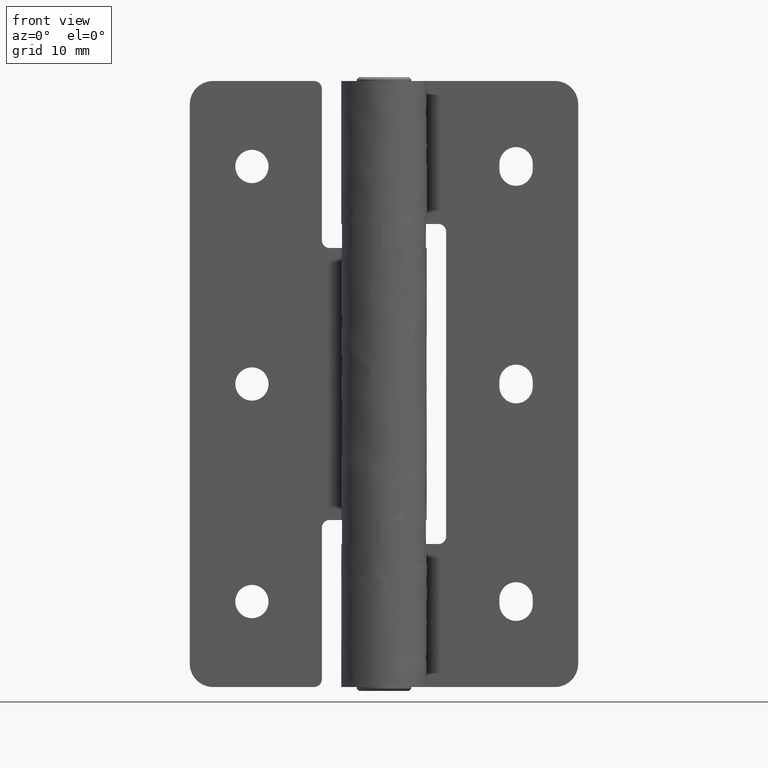
[diagram: clean part render]
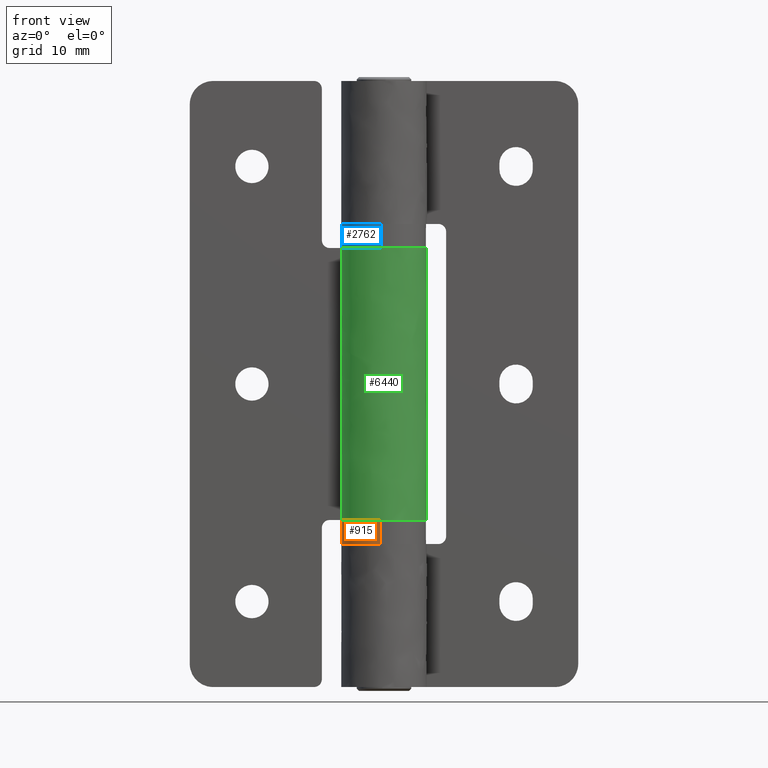
[diagram: same view with three faces highlighted in distinct colors, each labeled with its STEP entity id]
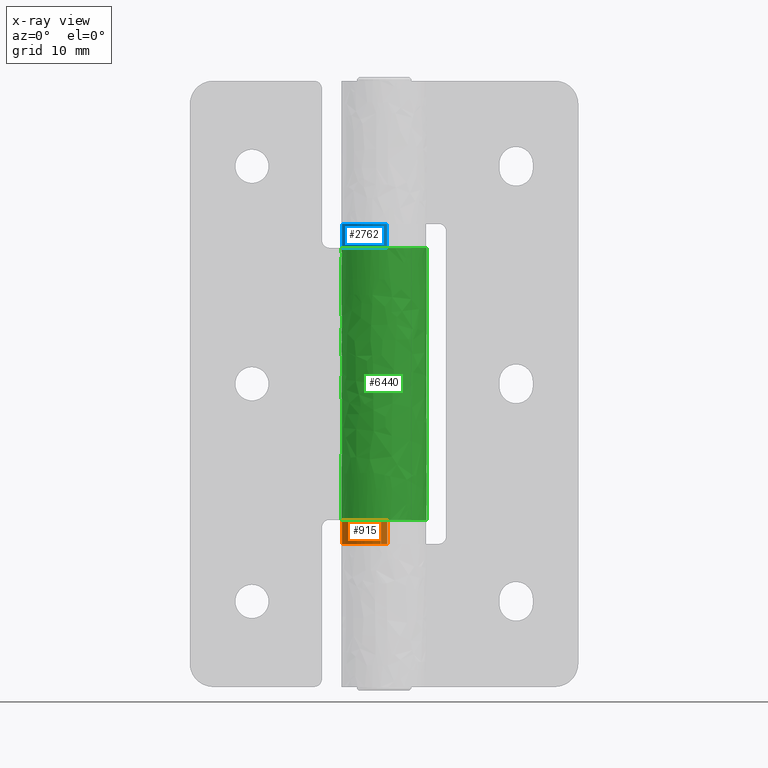
[diagram: x-ray of the same camera — body ghosted, the three highlighted faces saturated]
A machine part, front view with three faces highlighted in distinct colors.
The next image is the same camera in x-ray (body ghosted, the three faces saturated) — at least one of them is partly hidden behind the body in this view.
Their STEP definitions:

[orange] entity #915 — the highlighted face is a freeform B-spline surface patch.
#707=CARTESIAN_POINT('',(-0.423683496099843,-5.383353257507194,21.500000000000000));
#708=VERTEX_POINT('',#707);
#709=CARTESIAN_POINT('',(0.423689557716620,5.383352780430816,21.500000000000000));
#710=VERTEX_POINT('',#709);
#728=CARTESIAN_POINT('',(-0.423679117063694,-5.383353602148397,18.399999999999999));
#729=VERTEX_POINT('',#728);
#730=CARTESIAN_POINT('',(-0.423683496099843,-5.383353257507194,21.500000000000000));
#731=CARTESIAN_POINT('',(-0.423679117063694,-5.383353602148397,18.399999999999999));
#732=QUASI_UNIFORM_CURVE('',1,(#730,#731),.UNSPECIFIED.,.F.,.U.);
#733=EDGE_CURVE('',#708,#729,#732,.T.);
#752=CARTESIAN_POINT('',(0.423679117063694,5.383353602148397,18.399999999999999));
#753=VERTEX_POINT('',#752);
#767=CARTESIAN_POINT('',(0.423689557716620,5.383352780430816,21.500000000000000));
#768=CARTESIAN_POINT('',(0.423679117063694,5.383353602148397,18.399999999999999));
#769=QUASI_UNIFORM_CURVE('',1,(#767,#768),.UNSPECIFIED.,.F.,.U.);
#770=EDGE_CURVE('',#710,#753,#769,.T.);
#775=CARTESIAN_POINT('',(-0.423679116930363,-5.383353602158890,34.390000000000001));
#776=CARTESIAN_POINT('',(-5.807032719089252,-4.959674485228527,34.389999999999993));
#777=CARTESIAN_POINT('',(-5.383353602158890,0.423679116930363,34.390000000000001));
#778=CARTESIAN_POINT('',(-4.959674485228527,5.807032719089252,34.389999999999993));
#779=CARTESIAN_POINT('',(0.423679116930363,5.383353602158890,34.390000000000001));
#780=CARTESIAN_POINT('',(-0.423679116930363,-5.383353602158890,18.000249999999991));
#781=CARTESIAN_POINT('',(-5.807032719089252,-4.959674485228527,18.000249999999994));
#782=CARTESIAN_POINT('',(-5.383353602158890,0.423679116930363,18.000249999999991));
#783=CARTESIAN_POINT('',(-4.959674485228527,5.807032719089252,18.000249999999994));
#784=CARTESIAN_POINT('',(0.423679116930363,5.383353602158890,18.000249999999991));
#792=(BOUNDED_SURFACE()B_SPLINE_SURFACE(2,1,((#775,#780),(#776,#781),(#777,#782),(#778,#783),(#779,#784)),.UNSPECIFIED.,.F.,.F.,.U.)B_SPLINE_SURFACE_WITH_KNOTS((3,2,3),(2,2),(0.0,8.947012947258848,17.894025894517700),(0.0,16.389750000000010),.UNSPECIFIED.)GEOMETRIC_REPRESENTATION_ITEM()RATIONAL_B_SPLINE_SURFACE(((1.0,1.0),(0.707106781186548,0.707106781186548),(1.0,1.0),(0.707106781186548,0.707106781186548),(1.0,1.0)))REPRESENTATION_ITEM('')SURFACE());
#793=CARTESIAN_POINT('',(-4.112177038990420,3.500000000000000,21.500000000000000));
#794=VERTEX_POINT('',#793);
#795=CARTESIAN_POINT('',(0.423689557716620,5.383352780430816,21.500000000000000));
#796=CARTESIAN_POINT('',(-2.325066532310094,5.599689940483795,21.500000000000004));
#797=CARTESIAN_POINT('',(-4.112177038990420,3.500000000000000,21.500000000000000));
#805=(BOUNDED_CURVE()B_SPLINE_CURVE(2,(#795,#796,#797),.UNSPECIFIED.,.F.,.U.)B_SPLINE_CURVE_WITH_KNOTS((3,3),(0.837738523270226,1.0),.UNSPECIFIED.)CURVE()GEOMETRIC_REPRESENTATION_ITEM()RATIONAL_B_SPLINE_CURVE((0.886768634948933,0.838680660400556,1.0))REPRESENTATION_ITEM(''));
#806=EDGE_CURVE('',#710,#794,#805,.T.);
#807=ORIENTED_EDGE('',*,*,#806,.F.);
#808=ORIENTED_EDGE('',*,*,#770,.T.);
#809=CARTESIAN_POINT('',(-5.400000000000000,0.0,18.399999999999999));
#810=VERTEX_POINT('',#809);
#811=CARTESIAN_POINT('',(0.423679117063695,5.383353602148397,18.399999999999999));
#812=CARTESIAN_POINT('',(0.212166577908391,5.400000000000000,18.399999999999999));
#813=CARTESIAN_POINT('',(0.0,5.400000000000000,18.399999999999999));
#814=CARTESIAN_POINT('',(-5.400000000000000,5.400000000000000,18.399999999999991));
#815=CARTESIAN_POINT('',(-5.400000000000000,0.0,18.399999999999999));
#823=(BOUNDED_CURVE()B_SPLINE_CURVE(2,(#811,#812,#813,#814,#815),.UNSPECIFIED.,.F.,.U.)B_SPLINE_CURVE_WITH_KNOTS((3,2,3),(0.736331300628521,0.750000000000000,1.0),.UNSPECIFIED.)CURVE()GEOMETRIC_REPRESENTATION_ITEM()RATIONAL_B_SPLINE_CURVE((0.969723356162955,0.983986122576377,1.0,0.707106781186548,1.0))REPRESENTATION_ITEM(''));
#824=EDGE_CURVE('',#753,#810,#823,.T.);
#825=ORIENTED_EDGE('',*,*,#824,.T.);
#826=CARTESIAN_POINT('',(-5.400000000000000,0.0,18.399999999999999));
#827=CARTESIAN_POINT('',(-5.400000000000000,-4.991708654830305,18.399999999999991));
#828=CARTESIAN_POINT('',(-0.423679117063694,-5.383353602148398,18.399999999999999));
#836=(BOUNDED_CURVE()B_SPLINE_CURVE(2,(#826,#827,#828),.UNSPECIFIED.,.F.,.U.)B_SPLINE_CURVE_WITH_KNOTS((3,3),(0.0,0.236331300628521),.UNSPECIFIED.)CURVE()GEOMETRIC_REPRESENTATION_ITEM()RATIONAL_B_SPLINE_CURVE((1.0,0.723120658610171,0.969723356162955))REPRESENTATION_ITEM(''));
#837=EDGE_CURVE('',#810,#729,#836,.T.);
#838=ORIENTED_EDGE('',*,*,#837,.T.);
#839=ORIENTED_EDGE('',*,*,#733,.F.);
#840=CARTESIAN_POINT('',(-5.306599664568640,1.0,21.500000000000000));
#841=VERTEX_POINT('',#840);
#842=CARTESIAN_POINT('',(-5.306599664568640,1.0,21.500000000000000));
#843=CARTESIAN_POINT('',(-6.184617987820396,-3.659291739652463,21.500000000000000));
#844=CARTESIAN_POINT('',(-1.678053896966585,-5.132653808592466,21.500000000000000));
#845=CARTESIAN_POINT('',(-1.065820662914357,-5.332815440871864,21.500000000000007));
#846=CARTESIAN_POINT('',(-0.423683496099843,-5.383353257507194,21.499999999999996));
#854=(BOUNDED_CURVE()B_SPLINE_CURVE(2,(#842,#843,#844,#845,#846),.UNSPECIFIED.,.F.,.U.)B_SPLINE_CURVE_WITH_KNOTS((3,2,3),(0.0,0.250000000000000,0.293253497368617),.UNSPECIFIED.)CURVE()GEOMETRIC_REPRESENTATION_ITEM()RATIONAL_B_SPLINE_CURVE((1.0,0.751451572408494,1.0,0.956997644964788,0.928875307932455))REPRESENTATION_ITEM(''));
#855=EDGE_CURVE('',#841,#708,#854,.T.);
#856=ORIENTED_EDGE('',*,*,#855,.F.);
#857=CARTESIAN_POINT('',(-5.306599664568640,1.0,33.299999999999997));
#858=VERTEX_POINT('',#857);
#859=CARTESIAN_POINT('',(-5.306599664568640,1.0,33.299999999999997));
#860=CARTESIAN_POINT('',(-5.306599664568640,1.0,21.500000000000000));
#861=QUASI_UNIFORM_CURVE('',1,(#859,#860),.UNSPECIFIED.,.F.,.U.);
#862=EDGE_CURVE('',#858,#841,#861,.T.);
#863=ORIENTED_EDGE('',*,*,#862,.F.);
#864=CARTESIAN_POINT('',(-5.125426811495800,1.700000000000000,34.0));
#865=VERTEX_POINT('',#864);
#866=CARTESIAN_POINT('',(-5.306599664568640,1.0,33.299999999999997));
#867=CARTESIAN_POINT('',(-5.306599664568642,1.0,33.347066023685848));
#868=CARTESIAN_POINT('',(-5.305720342574672,1.004698626903804,33.393316710272927));
#869=CARTESIAN_POINT('',(-5.303083085930055,1.018494823183123,33.461519955216687));
#870=CARTESIAN_POINT('',(-5.301981564679265,1.024226920038496,33.484057368566390));
#871=CARTESIAN_POINT('',(-5.299300233300812,1.038010757780617,33.528728252977309));
#872=CARTESIAN_POINT('',(-5.297717165873770,1.046077350891849,33.550849638785479));
#873=CARTESIAN_POINT('',(-5.292313081800717,1.073201853692540,33.615096132897428));
#874=CARTESIAN_POINT('',(-5.287818435469791,1.095301841518994,33.655647483385181));
#875=CARTESIAN_POINT('',(-5.279518922058696,1.134397388156671,33.713073763755560));
#876=CARTESIAN_POINT('',(-5.276470693842387,1.148516109934625,33.731743634293373));
#877=CARTESIAN_POINT('',(-5.269904241352955,1.178279052146400,33.767273259801172));
#878=CARTESIAN_POINT('',(-5.266387789326326,1.193918664957371,33.784155439817340));
#879=CARTESIAN_POINT('',(-5.255094047857669,1.243026569533404,33.832235393580142));
#880=CARTESIAN_POINT('',(-5.246574934661934,1.278683158393307,33.860901833335546));
#881=CARTESIAN_POINT('',(-5.227188018417183,1.355759781339384,33.911242521031639));
#882=CARTESIAN_POINT('',(-5.216625481707926,1.395955244997562,33.932124034837663));
#883=CARTESIAN_POINT('',(-5.199344759386407,1.458520547901625,33.957414387072809));
#884=CARTESIAN_POINT('',(-5.193344263858087,1.479757354148953,33.964831870739083));
#885=CARTESIAN_POINT('',(-5.180830086682822,1.522992476352942,33.977625690166938));
#886=CARTESIAN_POINT('',(-5.174307453695108,1.545014945107610,33.982994904240570));
#887=CARTESIAN_POINT('',(-5.154288077411710,1.611033717503740,33.995769089866059));
#888=CARTESIAN_POINT('',(-5.140230984733852,1.655366055037476,34.0));
#889=CARTESIAN_POINT('',(-5.125426811495810,1.700000000000000,34.0));
#890=B_SPLINE_CURVE_WITH_KNOTS('',3,(#866,#867,#868,#869,#870,#871,#872,#873,#874,#875,#876,#877,#878,#879,#880,#881,#882,#883,#884,#885,#886,#887,#888,#889),.UNSPECIFIED.,.F.,.U.,(4,2,2,2,2,2,2,2,2,2,2,4),(0.0,0.125000000000011,0.187500000000007,0.250000000000003,0.374999999999996,0.437499999999992,0.499999999999989,0.624999999999995,0.750000000000001,0.812500000000001,0.875000000000001,1.0),.UNSPECIFIED.);
#891=EDGE_CURVE('',#858,#865,#890,.T.);
#892=ORIENTED_EDGE('',*,*,#891,.T.);
#893=CARTESIAN_POINT('',(-4.112177038990420,3.500000000000000,34.0));
#894=VERTEX_POINT('',#893);
#895=CARTESIAN_POINT('',(-4.112177038990418,3.500000000000000,34.0));
#896=CARTESIAN_POINT('',(-4.794172078176732,2.698718759757905,34.0));
#897=CARTESIAN_POINT('',(-5.125426811495800,1.699999999999999,34.0));
#905=(BOUNDED_CURVE()B_SPLINE_CURVE(2,(#895,#896,#897),.UNSPECIFIED.,.F.,.U.)CURVE()GEOMETRIC_REPRESENTATION_ITEM()QUASI_UNIFORM_CURVE()RATIONAL_B_SPLINE_CURVE((1.0,0.981539677251431,1.0))REPRESENTATION_ITEM(''));
#906=EDGE_CURVE('',#894,#865,#905,.T.);
#907=ORIENTED_EDGE('',*,*,#906,.F.);
#908=CARTESIAN_POINT('',(-4.112177038990420,3.500000000000000,34.0));
#909=CARTESIAN_POINT('',(-4.112177038990420,3.500000000000000,21.500000000000000));
#910=QUASI_UNIFORM_CURVE('',1,(#908,#909),.UNSPECIFIED.,.F.,.U.);
#911=EDGE_CURVE('',#894,#794,#910,.T.);
#912=ORIENTED_EDGE('',*,*,#911,.T.);
#913=EDGE_LOOP('',(#807,#808,#825,#838,#839,#856,#863,#892,#907,#912));
#914=FACE_OUTER_BOUND('',#913,.T.);
#915=ADVANCED_FACE('',(#914),#792,.T.);

[blue] entity #2762 — the highlighted face is a freeform B-spline surface patch.
#2403=CARTESIAN_POINT('',(-5.400000000000000,0.0,59.600000000000001));
#2404=VERTEX_POINT('',#2403);
#2405=CARTESIAN_POINT('',(-0.392847832260260,-5.385691281598714,59.600000000000001));
#2406=VERTEX_POINT('',#2405);
#2407=CARTESIAN_POINT('',(-5.400000000000000,0.0,59.600000000000001));
#2408=CARTESIAN_POINT('',(-5.400000000000000,-5.020455182453071,59.600000000000001));
#2409=CARTESIAN_POINT('',(-0.392847832260261,-5.385691281598716,59.600000000000001));
#2417=(BOUNDED_CURVE()B_SPLINE_CURVE(2,(#2407,#2408,#2409),.UNSPECIFIED.,.F.,.U.)B_SPLINE_CURVE_WITH_KNOTS((3,3),(0.0,0.237313899458118),.UNSPECIFIED.)CURVE()GEOMETRIC_REPRESENTATION_ITEM()RATIONAL_B_SPLINE_CURVE((1.0,0.721969472474160,0.971783014192757))REPRESENTATION_ITEM(''));
#2418=EDGE_CURVE('',#2404,#2406,#2417,.T.);
#2437=CARTESIAN_POINT('',(0.392847832260261,5.385691281598714,59.600000000000009));
#2438=VERTEX_POINT('',#2437);
#2452=CARTESIAN_POINT('',(0.392847832260263,5.385691281598716,59.599999999999994));
#2453=CARTESIAN_POINT('',(0.196684499752433,5.400000000000000,59.599999999999994));
#2454=CARTESIAN_POINT('',(0.0,5.400000000000000,59.600000000000001));
#2455=CARTESIAN_POINT('',(-5.400000000000000,5.400000000000000,59.600000000000009));
#2456=CARTESIAN_POINT('',(-5.400000000000000,0.0,59.600000000000001));
#2464=(BOUNDED_CURVE()B_SPLINE_CURVE(2,(#2452,#2453,#2454,#2455,#2456),.UNSPECIFIED.,.F.,.U.)B_SPLINE_CURVE_WITH_KNOTS((3,2,3),(0.737313899458118,0.750000000000000,1.0),.UNSPECIFIED.)CURVE()GEOMETRIC_REPRESENTATION_ITEM()RATIONAL_B_SPLINE_CURVE((0.971783014192757,0.985137308712388,1.0,0.707106781186548,1.0))REPRESENTATION_ITEM(''));
#2465=EDGE_CURVE('',#2438,#2404,#2464,.T.);
#2640=CARTESIAN_POINT('',(0.392847719467720,5.385691289826126,43.609999999999999));
#2641=CARTESIAN_POINT('',(-4.992843570358407,5.778539009293846,43.609999999999999));
#2642=CARTESIAN_POINT('',(-5.385691289826126,0.392847719467720,43.609999999999999));
#2643=CARTESIAN_POINT('',(-5.778539009293846,-4.992843570358407,43.609999999999999));
#2644=CARTESIAN_POINT('',(-0.392847719467720,-5.385691289826126,43.609999999999999));
#2645=CARTESIAN_POINT('',(0.392847719467720,5.385691289826126,59.999750000000013));
#2646=CARTESIAN_POINT('',(-4.992843570358407,5.778539009293846,59.999750000000006));
#2647=CARTESIAN_POINT('',(-5.385691289826126,0.392847719467720,59.999750000000013));
#2648=CARTESIAN_POINT('',(-5.778539009293846,-4.992843570358407,59.999750000000006));
#2649=CARTESIAN_POINT('',(-0.392847719467720,-5.385691289826126,59.999750000000013));
#2657=(BOUNDED_SURFACE()B_SPLINE_SURFACE(2,1,((#2640,#2645),(#2641,#2646),(#2642,#2647),(#2643,#2648),(#2644,#2649)),.UNSPECIFIED.,.F.,.F.,.U.)B_SPLINE_SURFACE_WITH_KNOTS((3,2,3),(2,2),(0.0,8.947012947258854,17.894025894517711),(0.0,16.389750000000010),.UNSPECIFIED.)GEOMETRIC_REPRESENTATION_ITEM()RATIONAL_B_SPLINE_SURFACE(((1.0,1.0),(0.707106781186548,0.707106781186548),(1.0,1.0),(0.707106781186548,0.707106781186548),(1.0,1.0)))REPRESENTATION_ITEM('')SURFACE());
#2658=CARTESIAN_POINT('',(0.392850961713003,5.385691053325523,56.500000000000000));
#2659=VERTEX_POINT('',#2658);
#2660=CARTESIAN_POINT('',(-4.112177038990420,3.500000000000000,56.500000000000000));
#2661=VERTEX_POINT('',#2660);
#2662=CARTESIAN_POINT('',(0.392850961713004,5.385691053325523,56.500000000000000));
#2663=CARTESIAN_POINT('',(-2.337683878263313,5.584865723253136,56.500000000000000));
#2664=CARTESIAN_POINT('',(-4.112177038990420,3.500000000000000,56.500000000000000));
#2672=(BOUNDED_CURVE()B_SPLINE_CURVE(2,(#2662,#2663,#2664),.UNSPECIFIED.,.F.,.U.)B_SPLINE_CURVE_WITH_KNOTS((3,3),(0.838700409207416,1.0),.UNSPECIFIED.)CURVE()GEOMETRIC_REPRESENTATION_ITEM()RATIONAL_B_SPLINE_CURVE((0.886205862799577,0.839636961349399,1.0))REPRESENTATION_ITEM(''));
#2673=EDGE_CURVE('',#2659,#2661,#2672,.T.);
#2674=ORIENTED_EDGE('',*,*,#2673,.T.);
#2675=CARTESIAN_POINT('',(-4.112177038990420,3.500000000000000,44.0));
#2676=VERTEX_POINT('',#2675);
#2677=CARTESIAN_POINT('',(-4.112177038990420,3.500000000000000,44.0));
#2678=CARTESIAN_POINT('',(-4.112177038990420,3.500000000000000,56.500000000000000));
#2679=QUASI_UNIFORM_CURVE('',1,(#2677,#2678),.UNSPECIFIED.,.F.,.U.);
#2680=EDGE_CURVE('',#2676,#2661,#2679,.T.);
#2681=ORIENTED_EDGE('',*,*,#2680,.F.);
#2682=CARTESIAN_POINT('',(-5.125426811495800,1.700000000000000,44.0));
#2683=VERTEX_POINT('',#2682);
#2684=CARTESIAN_POINT('',(-4.112177038990418,3.500000000000000,44.0));
#2685=CARTESIAN_POINT('',(-4.794172078176732,2.698718759757905,44.000000000000007));
#2686=CARTESIAN_POINT('',(-5.125426811495800,1.699999999999999,44.0));
#2694=(BOUNDED_CURVE()B_SPLINE_CURVE(2,(#2684,#2685,#2686),.UNSPECIFIED.,.F.,.U.)CURVE()GEOMETRIC_REPRESENTATION_ITEM()QUASI_UNIFORM_CURVE()RATIONAL_B_SPLINE_CURVE((1.0,0.981539677251431,1.0))REPRESENTATION_ITEM(''));
#2695=EDGE_CURVE('',#2676,#2683,#2694,.T.);
#2696=ORIENTED_EDGE('',*,*,#2695,.T.);
#2697=CARTESIAN_POINT('',(-5.306599664568640,1.0,44.700000000000003));
#2698=VERTEX_POINT('',#2697);
#2699=CARTESIAN_POINT('',(-5.125426811495800,1.700000000000000,44.0));
#2700=CARTESIAN_POINT('',(-5.140235370727156,1.655352831456458,44.0));
#2701=CARTESIAN_POINT('',(-5.154235914486437,1.611190447631210,44.004233697746123));
#2702=CARTESIAN_POINT('',(-5.174106262335648,1.545685937129214,44.016858988944222));
#2703=CARTESIAN_POINT('',(-5.180540889251471,1.523975329080047,44.022120014430527));
#2704=CARTESIAN_POINT('',(-5.193041789622008,1.480817909160516,44.034819445065189));
#2705=CARTESIAN_POINT('',(-5.199137281374579,1.459262351229183,44.042308197148166));
#2706=CARTESIAN_POINT('',(-5.216553200257532,1.396235306120973,44.067718810141123));
#2707=CARTESIAN_POINT('',(-5.227079583871737,1.356163987103385,44.088574470688783));
#2708=CARTESIAN_POINT('',(-5.246247955834891,1.280009422599340,44.138152781841178));
#2709=CARTESIAN_POINT('',(-5.254963717915586,1.243580828984315,44.167277899270573));
#2710=CARTESIAN_POINT('',(-5.270083716012018,1.177860170415598,44.231511692101293));
#2711=CARTESIAN_POINT('',(-5.276561678206017,1.148308013506262,44.266662161124707));
#2712=CARTESIAN_POINT('',(-5.284893413803400,1.109089813399502,44.324019170684863));
#2713=CARTESIAN_POINT('',(-5.287450407673958,1.096812724893568,44.344039355171347));
#2714=CARTESIAN_POINT('',(-5.292034368111062,1.074477646966791,44.384937061251343));
#2715=CARTESIAN_POINT('',(-5.294067592477505,1.064393234167792,44.405823620162863));
#2716=CARTESIAN_POINT('',(-5.299461414127740,1.037326970063973,44.469766926141133));
#2717=CARTESIAN_POINT('',(-5.302125991069754,1.023499636031452,44.514094026340842));
#2718=CARTESIAN_POINT('',(-5.305719346950178,1.004705798496530,44.606299696652663));
#2719=CARTESIAN_POINT('',(-5.306599664568640,1.0,44.652909299967071));
#2720=CARTESIAN_POINT('',(-5.306599664568640,1.0,44.700000000000003));
#2721=B_SPLINE_CURVE_WITH_KNOTS('',3,(#2699,#2700,#2701,#2702,#2703,#2704,#2705,#2706,#2707,#2708,#2709,#2710,#2711,#2712,#2713,#2714,#2715,#2716,#2717,#2718,#2719,#2720),.UNSPECIFIED.,.F.,.U.,(4,2,2,2,2,2,2,2,2,2,4),(0.0,0.125000000000001,0.187500000000001,0.250000000000001,0.375000000000001,0.500000000000001,0.625000000000001,0.687500000000001,0.750000000000001,0.875000000000000,1.0),.UNSPECIFIED.);
#2722=EDGE_CURVE('',#2683,#2698,#2721,.T.);
#2723=ORIENTED_EDGE('',*,*,#2722,.T.);
#2724=CARTESIAN_POINT('',(-5.306599664568640,1.0,56.500000000000000));
#2725=VERTEX_POINT('',#2724);
#2726=CARTESIAN_POINT('',(-5.306599664568640,1.0,44.700000000000003));
#2727=CARTESIAN_POINT('',(-5.306599664568640,1.0,56.500000000000000));
#2728=QUASI_UNIFORM_CURVE('',1,(#2726,#2727),.UNSPECIFIED.,.F.,.U.);
#2729=EDGE_CURVE('',#2698,#2725,#2728,.T.);
#2730=ORIENTED_EDGE('',*,*,#2729,.T.);
#2731=CARTESIAN_POINT('',(-0.392847719407547,-5.385691289830516,56.500000000000000));
#2732=VERTEX_POINT('',#2731);
#2733=CARTESIAN_POINT('',(-5.306599664568640,1.000000000000004,56.500000000000000));
#2734=CARTESIAN_POINT('',(-6.184617987820451,-3.659291739653163,56.499999999999993));
#2735=CARTESIAN_POINT('',(-1.678053896966708,-5.132653808594035,56.500000000000000));
#2736=CARTESIAN_POINT('',(-1.050909767319769,-5.337690362774204,56.500000000000007));
#2737=CARTESIAN_POINT('',(-0.392847719407547,-5.385691289830517,56.500000000000000));
#2745=(BOUNDED_CURVE()B_SPLINE_CURVE(2,(#2733,#2734,#2735,#2736,#2737),.UNSPECIFIED.,.F.,.U.)B_SPLINE_CURVE_WITH_KNOTS((3,2,3),(0.0,0.250000000000000,0.294260578176795),.UNSPECIFIED.)CURVE()GEOMETRIC_REPRESENTATION_ITEM()RATIONAL_B_SPLINE_CURVE((1.0,0.751451572408494,1.0,0.955996411559467,0.927573817248788))REPRESENTATION_ITEM(''));
#2746=EDGE_CURVE('',#2725,#2732,#2745,.T.);
#2747=ORIENTED_EDGE('',*,*,#2746,.T.);
#2748=CARTESIAN_POINT('',(-0.392847719407547,-5.385691289830516,56.500000000000000));
#2749=CARTESIAN_POINT('',(-0.392847832260260,-5.385691281598714,59.600000000000001));
#2750=QUASI_UNIFORM_CURVE('',1,(#2748,#2749),.UNSPECIFIED.,.F.,.U.);
#2751=EDGE_CURVE('',#2732,#2406,#2750,.T.);
#2752=ORIENTED_EDGE('',*,*,#2751,.T.);
#2753=ORIENTED_EDGE('',*,*,#2418,.F.);
#2754=ORIENTED_EDGE('',*,*,#2465,.F.);
#2755=CARTESIAN_POINT('',(0.392850961713003,5.385691053325523,56.500000000000000));
#2756=CARTESIAN_POINT('',(0.392847832260261,5.385691281598714,59.600000000000009));
#2757=QUASI_UNIFORM_CURVE('',1,(#2755,#2756),.UNSPECIFIED.,.F.,.U.);
#2758=EDGE_CURVE('',#2659,#2438,#2757,.T.);
#2759=ORIENTED_EDGE('',*,*,#2758,.F.);
#2760=EDGE_LOOP('',(#2674,#2681,#2696,#2723,#2730,#2747,#2752,#2753,#2754,#2759));
#2761=FACE_OUTER_BOUND('',#2760,.T.);
#2762=ADVANCED_FACE('',(#2761),#2657,.T.);

[green] entity #6440 — the highlighted face is a freeform B-spline surface patch.
#5620=CARTESIAN_POINT('',(-2.273737E-013,5.500000000000229,56.500000000000000));
#5621=VERTEX_POINT('',#5620);
#5627=CARTESIAN_POINT('',(-2.273737E-013,5.500000000000229,21.500000000000298));
#5628=VERTEX_POINT('',#5627);
#5629=CARTESIAN_POINT('',(-2.273737E-013,5.500000000000229,56.500000000000000));
#5630=CARTESIAN_POINT('',(-2.273737E-013,5.500000000000229,21.500000000000298));
#5631=QUASI_UNIFORM_CURVE('',1,(#5629,#5630),.UNSPECIFIED.,.F.,.U.);
#5632=EDGE_CURVE('',#5621,#5628,#5631,.T.);
#5736=CARTESIAN_POINT('',(-5.500000000000170,8.097265E-014,56.500000000000000));
#5737=VERTEX_POINT('',#5736);
#5738=CARTESIAN_POINT('',(-5.408326913196150,1.000000000000030,55.500000000000000));
#5739=VERTEX_POINT('',#5738);
#5740=CARTESIAN_POINT('',(-5.500000000000168,1.864828E-014,56.499999999999950));
#5741=CARTESIAN_POINT('',(-5.500000000000166,0.504201977422092,56.004201977422063));
#5742=CARTESIAN_POINT('',(-5.408326913196153,0.999999999999987,55.500000000000000));
#5750=(BOUNDED_CURVE()B_SPLINE_CURVE(2,(#5740,#5741,#5742),.UNSPECIFIED.,.F.,.U.)CURVE()GEOMETRIC_REPRESENTATION_ITEM()QUASI_UNIFORM_CURVE()RATIONAL_B_SPLINE_CURVE((1.0,0.995824323371309,1.0))REPRESENTATION_ITEM(''));
#5751=EDGE_CURVE('',#5737,#5739,#5750,.T.);
#5805=CARTESIAN_POINT('',(-5.500000000000170,2.341877E-014,21.500000000000298));
#5806=VERTEX_POINT('',#5805);
#5812=CARTESIAN_POINT('',(-5.408326913196150,1.000000000000030,22.500000000000298));
#5813=VERTEX_POINT('',#5812);
#5814=CARTESIAN_POINT('',(-5.408326913196150,1.000000000000009,22.500000000000320));
#5815=CARTESIAN_POINT('',(-5.500000000000163,0.504201977422104,21.995798022578228));
#5816=CARTESIAN_POINT('',(-5.500000000000168,4.575333E-014,21.500000000000341));
#5824=(BOUNDED_CURVE()B_SPLINE_CURVE(2,(#5814,#5815,#5816),.UNSPECIFIED.,.F.,.U.)CURVE()GEOMETRIC_REPRESENTATION_ITEM()QUASI_UNIFORM_CURVE()RATIONAL_B_SPLINE_CURVE((1.0,0.995824323371267,1.0))REPRESENTATION_ITEM(''));
#5825=EDGE_CURVE('',#5813,#5806,#5824,.T.);
#5849=CARTESIAN_POINT('',(-4.863411335619130,2.568507383787590,44.0));
#5850=VERTEX_POINT('',#5849);
#5851=CARTESIAN_POINT('',(-4.609772228646450,3.0,43.500000000000000));
#5852=VERTEX_POINT('',#5851);
#5853=CARTESIAN_POINT('',(-4.863411335619130,2.568507383787590,44.0));
#5854=CARTESIAN_POINT('',(-4.847981801071720,2.597722862666437,44.0));
#5855=CARTESIAN_POINT('',(-4.832545562598034,2.626314007967182,43.996783693770929));
#5856=CARTESIAN_POINT('',(-4.809404616233754,2.668310834237316,43.987309720058519));
#5857=CARTESIAN_POINT('',(-4.801693613995318,2.682160595060173,43.983371155120189));
#5858=CARTESIAN_POINT('',(-4.786286154834484,2.709559348753349,43.973894161556572));
#5859=CARTESIAN_POINT('',(-4.778568159467392,2.723144484042539,43.968329085223992));
#5860=CARTESIAN_POINT('',(-4.755955832188538,2.762571675966919,43.949570180139283));
#5861=CARTESIAN_POINT('',(-4.741437187863984,2.787384745471176,43.934253755245237));
#5862=CARTESIAN_POINT('',(-4.713626970484032,2.834159683022541,43.898039353047352));
#5863=CARTESIAN_POINT('',(-4.700279944687374,2.856204114543672,43.876949386661650));
#5864=CARTESIAN_POINT('',(-4.676124883564852,2.895581042843063,43.830862562881933));
#5865=CARTESIAN_POINT('',(-4.665160465380761,2.913179230875930,43.805706744851193));
#5866=CARTESIAN_POINT('',(-4.645656621960468,2.944182390714501,43.751067372253530));
#5867=CARTESIAN_POINT('',(-4.637294057592106,2.957306227944346,43.721982264501783));
#5868=CARTESIAN_POINT('',(-4.623801649765951,2.978357702835428,43.661825486315827));
#5869=CARTESIAN_POINT('',(-4.618572835341868,2.986440474576031,43.630344694394381));
#5870=CARTESIAN_POINT('',(-4.611543674330592,2.997283217062617,43.565716839846203));
#5871=CARTESIAN_POINT('',(-4.609772228646559,3.000000000000070,43.533040879240517));
#5872=CARTESIAN_POINT('',(-4.609772228646560,3.000000000000070,43.500000000000000));
#5873=B_SPLINE_CURVE_WITH_KNOTS('',3,(#5853,#5854,#5855,#5856,#5857,#5858,#5859,#5860,#5861,#5862,#5863,#5864,#5865,#5866,#5867,#5868,#5869,#5870,#5871,#5872),.UNSPECIFIED.,.F.,.U.,(4,2,2,2,2,2,2,2,2,4),(0.0,0.125000000000017,0.187500000000021,0.250000000000025,0.375000000000021,0.500000000000017,0.625000000000013,0.750000000000008,0.875000000000004,1.0),.UNSPECIFIED.);
#5874=EDGE_CURVE('',#5850,#5852,#5873,.T.);
#5930=CARTESIAN_POINT('',(-4.609772228646450,3.0,34.500000000000000));
#5931=VERTEX_POINT('',#5930);
#5932=CARTESIAN_POINT('',(-4.863411335619130,2.568507383787590,34.0));
#5933=VERTEX_POINT('',#5932);
#5934=CARTESIAN_POINT('',(-4.609772228646450,3.0,34.500000000000000));
#5935=CARTESIAN_POINT('',(-4.609772228646452,3.0,34.466958886690662));
#5936=CARTESIAN_POINT('',(-4.611543379644619,2.997283440396299,34.434470012404702));
#5937=CARTESIAN_POINT('',(-4.616727589766112,2.989286947249788,34.386531201824297));
#5938=CARTESIAN_POINT('',(-4.618879654663884,2.985962726812342,34.370685000400343));
#5939=CARTESIAN_POINT('',(-4.624042592306140,2.977961177503710,34.339265501203343));
#5940=CARTESIAN_POINT('',(-4.627067837194852,2.973261279475588,34.323649978026410));
#5941=CARTESIAN_POINT('',(-4.637230332067064,2.957406375775938,34.278227445971581));
#5942=CARTESIAN_POINT('',(-4.645487785582845,2.944447783337489,34.249503659514822));
#5943=CARTESIAN_POINT('',(-4.664822445535299,2.913719455683840,34.195144698094580));
#5944=CARTESIAN_POINT('',(-4.675998887545237,2.895784367243738,34.169409702405893));
#5945=CARTESIAN_POINT('',(-4.700137565893200,2.856438264618562,34.123290747975268));
#5946=CARTESIAN_POINT('',(-4.713186304142926,2.834893772790979,34.102599584670912));
#5947=CARTESIAN_POINT('',(-4.741143452460615,2.787885686996400,34.066065330497459));
#5948=CARTESIAN_POINT('',(-4.755849030873927,2.762753314824070,34.050548517561992));
#5949=CARTESIAN_POINT('',(-4.785800763322403,2.710538126796704,34.025641150790833));
#5950=CARTESIAN_POINT('',(-4.801252039817127,2.683099642065183,34.016064416005513));
#5951=CARTESIAN_POINT('',(-4.832456902875237,2.626481509729682,34.003216768293342));
#5952=CARTESIAN_POINT('',(-4.847981304391646,2.597723803119353,34.000000000000007));
#5953=CARTESIAN_POINT('',(-4.863411335619250,2.568507383787660,34.0));
#5954=B_SPLINE_CURVE_WITH_KNOTS('',3,(#5934,#5935,#5936,#5937,#5938,#5939,#5940,#5941,#5942,#5943,#5944,#5945,#5946,#5947,#5948,#5949,#5950,#5951,#5952,#5953),.UNSPECIFIED.,.F.,.U.,(4,2,2,2,2,2,2,2,2,4),(0.0,0.125000000000018,0.187500000000027,0.250000000000037,0.375000000000030,0.500000000000024,0.625000000000018,0.750000000000012,0.875000000000006,1.0),.UNSPECIFIED.);
#5955=EDGE_CURVE('',#5931,#5933,#5954,.T.);
#6038=CARTESIAN_POINT('',(-5.408326913196150,1.000000000000030,33.500000000000000));
#6039=VERTEX_POINT('',#6038);
#6045=CARTESIAN_POINT('',(-5.295022997672231,1.487525278481756,34.0));
#6046=VERTEX_POINT('',#6045);
#6047=CARTESIAN_POINT('',(-5.295022997672231,1.487525278481756,34.0));
#6048=CARTESIAN_POINT('',(-5.303958857782796,1.455717022532169,34.0));
#6049=CARTESIAN_POINT('',(-5.312459846464717,1.424356789126553,33.996783693770929));
#6050=CARTESIAN_POINT('',(-5.324608137850356,1.377970844792004,33.987309720058533));
#6051=CARTESIAN_POINT('',(-5.328556738131804,1.362618842115191,33.983371155120182));
#6052=CARTESIAN_POINT('',(-5.336257329425006,1.332142910702564,33.973894161556572));
#6053=CARTESIAN_POINT('',(-5.340018598301063,1.316977944175923,33.968329085223978));
#6054=CARTESIAN_POINT('',(-5.350780295650207,1.272819064228927,33.949570180139297));
#6055=CARTESIAN_POINT('',(-5.357344379333340,1.244829918892802,33.934253755245223));
#6056=CARTESIAN_POINT('',(-5.369398398350281,1.191763888334698,33.898039353047373));
#6057=CARTESIAN_POINT('',(-5.374904996391857,1.166588951657221,33.876949386661643));
#6058=CARTESIAN_POINT('',(-5.384513597358192,1.121403951407161,33.830862562881947));
#6059=CARTESIAN_POINT('',(-5.388685218627406,1.101093553475510,33.805706744851200));
#6060=CARTESIAN_POINT('',(-5.395898486702465,1.065183045378066,33.751067372253537));
#6061=CARTESIAN_POINT('',(-5.398874725035708,1.049908570204293,33.721982264501783));
#6062=CARTESIAN_POINT('',(-5.403592020533529,1.025353391784591,33.661825486315827));
#6063=CARTESIAN_POINT('',(-5.405368172990597,1.015892050350025,33.630344694394367));
#6064=CARTESIAN_POINT('',(-5.407740015638090,1.003189746165020,33.565716839846203));
#6065=CARTESIAN_POINT('',(-5.408326913196150,1.000000000000030,33.533040879240517));
#6066=CARTESIAN_POINT('',(-5.408326913196150,1.000000000000030,33.500000000000000));
#6067=B_SPLINE_CURVE_WITH_KNOTS('',3,(#6047,#6048,#6049,#6050,#6051,#6052,#6053,#6054,#6055,#6056,#6057,#6058,#6059,#6060,#6061,#6062,#6063,#6064,#6065,#6066),.UNSPECIFIED.,.F.,.U.,(4,2,2,2,2,2,2,2,2,4),(0.0,0.125000000000013,0.187500000000016,0.250000000000020,0.375000000000017,0.500000000000013,0.625000000000010,0.750000000000007,0.875000000000003,1.0),.UNSPECIFIED.);
#6068=EDGE_CURVE('',#6046,#6039,#6067,.T.);
#6119=CARTESIAN_POINT('',(-5.295022997672231,1.487525278481756,44.0));
#6120=VERTEX_POINT('',#6119);
#6126=CARTESIAN_POINT('',(-5.408326913196150,1.000000000000030,44.500000000000000));
#6127=VERTEX_POINT('',#6126);
#6128=CARTESIAN_POINT('',(-5.408326913196150,1.000000000000030,44.500000000000000));
#6129=CARTESIAN_POINT('',(-5.408326913196150,1.000000000000030,44.466958886690662));
#6130=CARTESIAN_POINT('',(-5.407739955813242,1.003189381283198,44.434470012404702));
#6131=CARTESIAN_POINT('',(-5.405990889944978,1.012557449697468,44.386531201824290));
#6132=CARTESIAN_POINT('',(-5.405261566231403,1.016449738453684,44.370685000400350));
#6133=CARTESIAN_POINT('',(-5.403493595439750,1.025806821103533,44.339265501203343));
#6134=CARTESIAN_POINT('',(-5.402449823565512,1.031297876410667,44.323649978026403));
#6135=CARTESIAN_POINT('',(-5.398897501265497,1.049792072246921,44.278227445971588));
#6136=CARTESIAN_POINT('',(-5.395958870601214,1.064874350137548,44.249503659514801));
#6137=CARTESIAN_POINT('',(-5.388812236304298,1.100469080282516,44.195144698094573));
#6138=CARTESIAN_POINT('',(-5.384562290759803,1.121169761822618,44.169409702405893));
#6139=CARTESIAN_POINT('',(-5.374963043583077,1.166321129884032,44.123290747975247));
#6140=CARTESIAN_POINT('',(-5.369584522550618,1.190928165656797,44.102599584670877));
#6141=CARTESIAN_POINT('',(-5.357476446646012,1.244264426961990,44.066065330497452));
#6142=CARTESIAN_POINT('',(-5.350827969187760,1.272613816990096,44.050548517561978));
#6143=CARTESIAN_POINT('',(-5.336579557595450,1.331098985233800,44.025641150790818));
#6144=CARTESIAN_POINT('',(-5.328883368893366,1.361633900808279,44.016064416005491));
#6145=CARTESIAN_POINT('',(-5.312510935644949,1.424174286297671,44.003216768293342));
#6146=CARTESIAN_POINT('',(-5.303959145430297,1.455715998617284,44.0));
#6147=CARTESIAN_POINT('',(-5.295022997672381,1.487525278481796,44.0));
#6148=B_SPLINE_CURVE_WITH_KNOTS('',3,(#6128,#6129,#6130,#6131,#6132,#6133,#6134,#6135,#6136,#6137,#6138,#6139,#6140,#6141,#6142,#6143,#6144,#6145,#6146,#6147),.UNSPECIFIED.,.F.,.U.,(4,2,2,2,2,2,2,2,2,4),(0.0,0.125000000000018,0.187500000000027,0.250000000000036,0.375000000000030,0.500000000000024,0.625000000000018,0.750000000000012,0.875000000000006,1.0),.UNSPECIFIED.);
#6149=EDGE_CURVE('',#6127,#6120,#6148,.T.);
#6178=CARTESIAN_POINT('',(-4.863411335619128,2.568507383787590,34.0));
#6179=CARTESIAN_POINT('',(-5.136732049040592,2.050980720518560,34.0));
#6180=CARTESIAN_POINT('',(-5.295022997672227,1.487525278481756,34.0));
#6188=(BOUNDED_CURVE()B_SPLINE_CURVE(2,(#6178,#6179,#6180),.UNSPECIFIED.,.F.,.U.)CURVE()GEOMETRIC_REPRESENTATION_ITEM()QUASI_UNIFORM_CURVE()RATIONAL_B_SPLINE_CURVE((1.0,0.994385848341438,1.0))REPRESENTATION_ITEM(''));
#6189=EDGE_CURVE('',#5933,#6046,#6188,.T.);
#6200=CARTESIAN_POINT('',(-4.863411335619128,2.568507383787590,44.0));
#6201=CARTESIAN_POINT('',(-5.136732049040592,2.050980720518560,44.000000000000007));
#6202=CARTESIAN_POINT('',(-5.295022997672227,1.487525278481756,44.0));
#6210=(BOUNDED_CURVE()B_SPLINE_CURVE(2,(#6200,#6201,#6202),.UNSPECIFIED.,.F.,.U.)CURVE()GEOMETRIC_REPRESENTATION_ITEM()QUASI_UNIFORM_CURVE()RATIONAL_B_SPLINE_CURVE((1.0,0.994385848341438,1.0))REPRESENTATION_ITEM(''));
#6211=EDGE_CURVE('',#5850,#6120,#6210,.T.);
#6242=CARTESIAN_POINT('',(-4.609772228646450,3.0,43.500000000000000));
#6243=CARTESIAN_POINT('',(-4.609772228646450,3.0,34.500000000000000));
#6244=QUASI_UNIFORM_CURVE('',1,(#6242,#6243),.UNSPECIFIED.,.F.,.U.);
#6245=EDGE_CURVE('',#5852,#5931,#6244,.T.);
#6259=CARTESIAN_POINT('',(-5.500000000000170,2.341877E-014,21.500000000000298));
#6260=CARTESIAN_POINT('',(-5.500280617069425,-0.556860624772152,21.500000000000330));
#6261=CARTESIAN_POINT('',(-5.352631079582428,-1.518511933409974,21.500000000000309));
#6262=CARTESIAN_POINT('',(-4.860664028995932,-2.637464899379959,21.500000000000249));
#6263=CARTESIAN_POINT('',(-4.274032008123638,-3.506728477639143,21.500000000000441));
#6264=CARTESIAN_POINT('',(-3.531039934595350,-4.275340026886068,21.500000000000220));
#6265=CARTESIAN_POINT('',(-2.636732320266549,-4.862966752284647,21.500000000000330));
#6266=CARTESIAN_POINT('',(-1.747709504279131,-5.235946948873899,21.500000000000359));
#6267=CARTESIAN_POINT('',(-0.894966965758900,-5.453753076368640,21.500000000000281));
#6268=CARTESIAN_POINT('',(0.169223307273659,-5.538912495956629,21.500000000000380));
#6269=CARTESIAN_POINT('',(1.180047670236541,-5.404766250008429,21.500000000000430));
#6270=CARTESIAN_POINT('',(2.144344877438246,-5.089400629511543,21.500000000000210));
#6271=CARTESIAN_POINT('',(3.079922710506716,-4.611398889983032,21.500000000000359));
#6272=CARTESIAN_POINT('',(3.969737851917068,-3.871981948060844,21.500000000000231));
#6273=CARTESIAN_POINT('',(4.652298220727400,-2.986005125499616,21.500000000000430));
#6274=CARTESIAN_POINT('',(5.075864440018150,-2.175712299786456,21.500000000000199));
#6275=CARTESIAN_POINT('',(5.389459285738829,-1.245800981439631,21.500000000000121));
#6276=CARTESIAN_POINT('',(5.523182271283903,-0.304563002634978,21.500000000001052));
#6277=CARTESIAN_POINT('',(5.478113018391921,0.743510895268125,21.499999999999002));
#6278=CARTESIAN_POINT('',(5.280196318192117,1.637713339801188,21.500000000000650));
#6279=CARTESIAN_POINT('',(4.911109028331407,2.528711010268032,21.500000000000611));
#6280=CARTESIAN_POINT('',(4.465722255679478,3.249045968541296,21.500000000000082));
#6281=CARTESIAN_POINT('',(3.804067832857915,4.018566205058924,21.500000000000359));
#6282=CARTESIAN_POINT('',(3.019336585947757,4.642731617335453,21.500000000000298));
#6283=CARTESIAN_POINT('',(2.158526315146256,5.079196494446326,21.500000000000298));
#6284=CARTESIAN_POINT('',(1.197953239671290,5.404758721088308,21.500000000000320));
#6285=CARTESIAN_POINT('',(0.489354889032714,5.500183335005562,21.500000000000309));
#6286=CARTESIAN_POINT('',(-2.273737E-013,5.500000000000229,21.500000000000298));
#6287=B_SPLINE_CURVE_WITH_KNOTS('',3,(#6259,#6260,#6261,#6262,#6263,#6264,#6265,#6266,#6267,#6268,#6269,#6270,#6271,#6272,#6273,#6274,#6275,#6276,#6277,#6278,#6279,#6280,#6281,#6282,#6283,#6284,#6285,#6286),.UNSPECIFIED.,.F.,.U.,(4,1,1,1,1,1,1,1,1,1,1,1,1,1,1,1,1,1,1,1,1,1,1,1,1,4),(0.000000313040999,1.670501074743068,2.885427425369546,3.644758694030774,4.809050554643029,6.074588069535665,6.833872680400344,7.694443013158498,8.706900112398671,10.023067634104830,10.731773402292649,11.744230501516340,13.161558016784740,14.174000658688639,15.085215794618829,15.895163526103250,17.110093160288908,17.920027847149509,19.033713948323982,19.843632502920979,20.805432745275159,21.564773440153751,22.880940463512779,23.792130656637461,24.450233700714431,25.918230871163232),.UNSPECIFIED.);
#6288=EDGE_CURVE('',#5806,#5628,#6287,.T.);
#6360=CARTESIAN_POINT('',(-2.273737E-013,5.500000000000229,56.500000000000000));
#6361=CARTESIAN_POINT('',(0.371223404748479,5.500053333390353,56.499999999999979));
#6362=CARTESIAN_POINT('',(1.096766737032343,5.426250183864859,56.499999999999872));
#6363=CARTESIAN_POINT('',(2.214611367063814,5.081649102323246,56.500000000000149));
#6364=CARTESIAN_POINT('',(3.146160763461702,4.553881899869862,56.499999999999751));
#6365=CARTESIAN_POINT('',(4.006829233010762,3.816040187578742,56.500000000000462));
#6366=CARTESIAN_POINT('',(4.716648188634212,2.926494070974619,56.499999999999652));
#6367=CARTESIAN_POINT('',(5.207500239232585,1.880234105379340,56.500000000000497));
#6368=CARTESIAN_POINT('',(5.457721146795936,0.861129576519398,56.499999999999417));
#6369=CARTESIAN_POINT('',(5.517497512727629,0.067283727983787,56.499999999999822));
#6370=CARTESIAN_POINT('',(5.461248424154743,-0.826391672716758,56.500000000001201));
#6371=CARTESIAN_POINT('',(5.258194522169085,-1.737305610769589,56.499999999999893));
#6372=CARTESIAN_POINT('',(4.855552714453673,-2.634346443454927,56.499999999999552));
#6373=CARTESIAN_POINT('',(4.306411137788871,-3.467245630360306,56.499999999999531));
#6374=CARTESIAN_POINT('',(3.536365798418511,-4.281200336831925,56.500000000002188));
#6375=CARTESIAN_POINT('',(2.507459624232804,-4.946080473229712,56.499999999996803));
#6376=CARTESIAN_POINT('',(1.473777569982754,-5.326559865023692,56.500000000004789));
#6377=CARTESIAN_POINT('',(0.491772244395951,-5.507846893894817,56.499999999994991));
#6378=CARTESIAN_POINT('',(-0.610652086934958,-5.511321750135438,56.500000000002068));
#6379=CARTESIAN_POINT('',(-1.672591802034041,-5.276254451832087,56.500000000000547));
#6380=CARTESIAN_POINT('',(-2.541109801186055,-4.897517453951790,56.499999999996291));
#6381=CARTESIAN_POINT('',(-3.291122071439037,-4.438607998732680,56.500000000003070));
#6382=CARTESIAN_POINT('',(-3.944344547541911,-3.871609337675426,56.499999999999829));
#6383=CARTESIAN_POINT('',(-4.576271945553019,-3.099216030851399,56.499999999998202));
#6384=CARTESIAN_POINT('',(-5.027683305273361,-2.302333848135205,56.500000000005151));
#6385=CARTESIAN_POINT('',(-5.401528081567942,-1.231705522070805,56.499999999988432));
#6386=CARTESIAN_POINT('',(-5.500129996864587,-0.472478980077669,56.500000000011887));
#6387=CARTESIAN_POINT('',(-5.500000000000170,8.097265E-014,56.500000000000000));
#6388=B_SPLINE_CURVE_WITH_KNOTS('',3,(#6360,#6361,#6362,#6363,#6364,#6365,#6366,#6367,#6368,#6369,#6370,#6371,#6372,#6373,#6374,#6375,#6376,#6377,#6378,#6379,#6380,#6381,#6382,#6383,#6384,#6385,#6386,#6387),.UNSPECIFIED.,.F.,.U.,(4,1,1,1,1,1,1,1,1,1,1,1,1,1,1,1,1,1,1,1,1,1,1,1,1,4),(0.000000339238532,1.113662991400240,2.176713184661153,3.492886418822636,4.302834079599588,5.568392070610958,6.884534710473968,7.745146479050877,8.706882916457740,9.263730015197172,10.428029949745470,11.491080816977810,12.199786773995390,13.414715276129259,14.832117840321139,15.844552508610890,16.705160933012291,17.818773945364210,19.134937323666271,19.944865081386610,20.653576345631901,21.767266149209750,22.526601547797139,23.640292229834760,24.500837398591621,25.918230871182072),.UNSPECIFIED.);
#6389=EDGE_CURVE('',#5621,#5737,#6388,.T.);
#6394=CARTESIAN_POINT('',(-4.506674788591545,3.152757895854788,57.375000000000000));
#6395=CARTESIAN_POINT('',(-4.506674788591545,3.152757895854788,20.603125000000301));
#6396=CARTESIAN_POINT('',(-8.446655238516875,-2.479203436972837,57.375000000000000));
#6397=CARTESIAN_POINT('',(-8.446655238516875,-2.479203436972837,20.603125000000311));
#6398=CARTESIAN_POINT('',(-2.087809510234085,-5.088325014086303,57.375000000000000));
#6399=CARTESIAN_POINT('',(-2.087809510234085,-5.088325014086303,20.603125000000301));
#6400=CARTESIAN_POINT('',(4.271036218048703,-7.697446591199768,57.375000000000000));
#6401=CARTESIAN_POINT('',(4.271036218048703,-7.697446591199768,20.603125000000311));
#6402=CARTESIAN_POINT('',(5.422298782532089,-0.921236078835319,57.375000000000000));
#6403=CARTESIAN_POINT('',(5.422298782532089,-0.921236078835319,20.603125000000301));
#6404=CARTESIAN_POINT('',(6.573561347015475,5.854974433529131,57.375000000000000));
#6405=CARTESIAN_POINT('',(6.573561347015475,5.854974433529131,20.603125000000311));
#6406=CARTESIAN_POINT('',(-0.290178923705222,5.492339773924838,57.375000000000000));
#6407=CARTESIAN_POINT('',(-0.290178923705222,5.492339773924838,20.603125000000301));
#6415=(BOUNDED_SURFACE()B_SPLINE_SURFACE(1,2,((#6394,#6396,#6398,#6400,#6402,#6404,#6406),(#6395,#6397,#6399,#6401,#6403,#6405,#6407)),.UNSPECIFIED.,.F.,.F.,.U.)B_SPLINE_SURFACE_WITH_KNOTS((2,2),(3,2,2,3),(0.0,36.771874999999703),(0.0,10.572125807836359,21.144251615672719,31.716377423509080),.UNSPECIFIED.)GEOMETRIC_REPRESENTATION_ITEM()RATIONAL_B_SPLINE_SURFACE(((1.0,0.624788514543960,1.0,0.624788514543960,1.0,0.624788514543960,1.0),(1.0,0.624788514543960,1.0,0.624788514543960,1.0,0.624788514543960,1.0)))REPRESENTATION_ITEM('')SURFACE());
#6416=CARTESIAN_POINT('',(-5.408326913196150,1.000000000000030,33.500000000000000));
#6417=CARTESIAN_POINT('',(-5.408326913196150,1.000000000000030,22.500000000000298));
#6418=QUASI_UNIFORM_CURVE('',1,(#6416,#6417),.UNSPECIFIED.,.F.,.U.);
#6419=EDGE_CURVE('',#6039,#5813,#6418,.T.);
#6420=ORIENTED_EDGE('',*,*,#6419,.T.);
#6421=ORIENTED_EDGE('',*,*,#5825,.T.);
#6422=ORIENTED_EDGE('',*,*,#6288,.T.);
#6423=ORIENTED_EDGE('',*,*,#5632,.F.);
#6424=ORIENTED_EDGE('',*,*,#6389,.T.);
#6425=ORIENTED_EDGE('',*,*,#5751,.T.);
#6426=CARTESIAN_POINT('',(-5.408326913196150,1.000000000000030,55.500000000000000));
#6427=CARTESIAN_POINT('',(-5.408326913196150,1.000000000000030,44.500000000000000));
#6428=QUASI_UNIFORM_CURVE('',1,(#6426,#6427),.UNSPECIFIED.,.F.,.U.);
#6429=EDGE_CURVE('',#5739,#6127,#6428,.T.);
#6430=ORIENTED_EDGE('',*,*,#6429,.T.);
#6431=ORIENTED_EDGE('',*,*,#6149,.T.);
#6432=ORIENTED_EDGE('',*,*,#6211,.F.);
#6433=ORIENTED_EDGE('',*,*,#5874,.T.);
#6434=ORIENTED_EDGE('',*,*,#6245,.T.);
#6435=ORIENTED_EDGE('',*,*,#5955,.T.);
#6436=ORIENTED_EDGE('',*,*,#6189,.T.);
#6437=ORIENTED_EDGE('',*,*,#6068,.T.);
#6438=EDGE_LOOP('',(#6420,#6421,#6422,#6423,#6424,#6425,#6430,#6431,#6432,#6433,#6434,#6435,#6436,#6437));
#6439=FACE_OUTER_BOUND('',#6438,.T.);
#6440=ADVANCED_FACE('',(#6439),#6415,.T.);